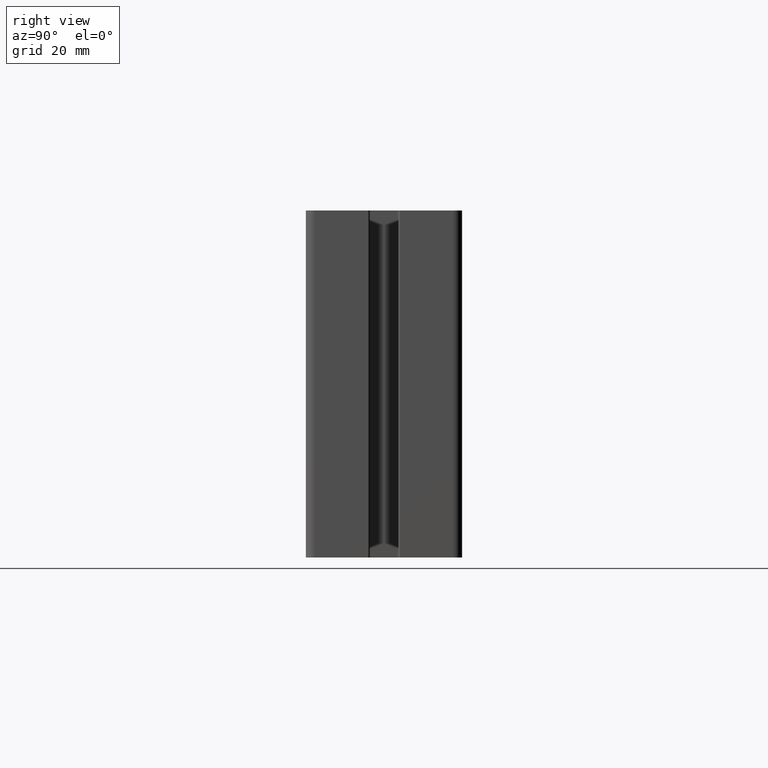
[diagram: clean part render]
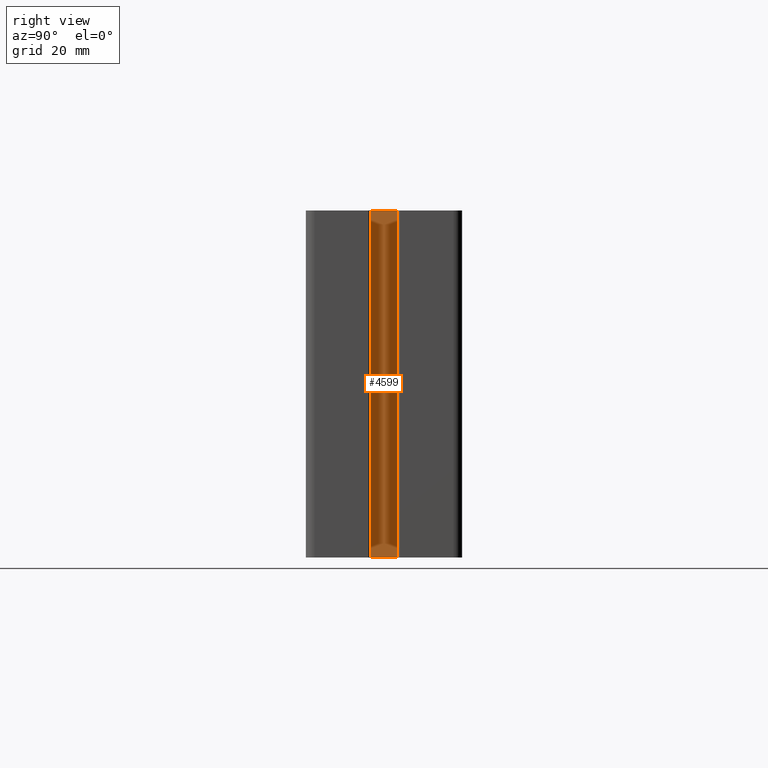
[diagram: same view with one face highlighted and labeled with its STEP entity id]
A machine part, right view. The second image highlights one B-rep face of the part: STEP entity #4599.
In plain terms, the highlighted planar face has unit normal (1, 0, 0).
Its self-contained STEP definition (entity closure, byte-faithful):
#103=PLANE('',#4979);
#295=FACE_OUTER_BOUND('',#533,.T.);
#533=EDGE_LOOP('',(#3495,#3496,#3497,#3498));
#909=LINE('',#7356,#1373);
#910=LINE('',#7359,#1374);
#911=LINE('',#7361,#1375);
#912=LINE('',#7362,#1376);
#1373=VECTOR('',#5975,100.);
#1374=VECTOR('',#5978,7.60000000000012);
#1375=VECTOR('',#5979,7.60000000000012);
#1376=VECTOR('',#5980,100.);
#2079=VERTEX_POINT('',#7352);
#2080=VERTEX_POINT('',#7354);
#2081=VERTEX_POINT('',#7358);
#2082=VERTEX_POINT('',#7360);
#2673=EDGE_CURVE('',#2079,#2080,#909,.T.);
#2674=EDGE_CURVE('',#2079,#2081,#910,.T.);
#2675=EDGE_CURVE('',#2082,#2080,#911,.T.);
#2676=EDGE_CURVE('',#2081,#2082,#912,.T.);
#3495=ORIENTED_EDGE('',*,*,#2674,.F.);
#3496=ORIENTED_EDGE('',*,*,#2673,.T.);
#3497=ORIENTED_EDGE('',*,*,#2675,.F.);
#3498=ORIENTED_EDGE('',*,*,#2676,.F.);
#4599=ADVANCED_FACE('',(#295),#103,.T.);
#4979=AXIS2_PLACEMENT_3D('',#7357,#5976,#5977);
#5975=DIRECTION('',(0.,0.,1.));
#5976=DIRECTION('center_axis',(1.,7.0119348923693E-15,0.));
#5977=DIRECTION('ref_axis',(-7.105427357601E-15,1.,0.));
#5978=DIRECTION('',(7.0119348923693E-15,-1.,0.));
#5979=DIRECTION('',(-7.0119348923693E-15,1.,0.));
#5980=DIRECTION('',(0.,0.,1.));
#7352=CARTESIAN_POINT('',(74.7,3.79999999999997,0.));
#7354=CARTESIAN_POINT('',(74.7,3.79999999999997,100.));
#7356=CARTESIAN_POINT('',(74.7,3.79999999999997,0.));
#7357=CARTESIAN_POINT('Origin',(74.7000000000001,-3.80000000000015,0.));
#7358=CARTESIAN_POINT('',(74.7000000000001,-3.80000000000015,0.));
#7359=CARTESIAN_POINT('',(74.7,3.79999999999997,0.));
#7360=CARTESIAN_POINT('',(74.7000000000001,-3.80000000000015,100.));
#7361=CARTESIAN_POINT('',(74.7,3.79999999999997,100.));
#7362=CARTESIAN_POINT('',(74.7000000000001,-3.80000000000015,0.));